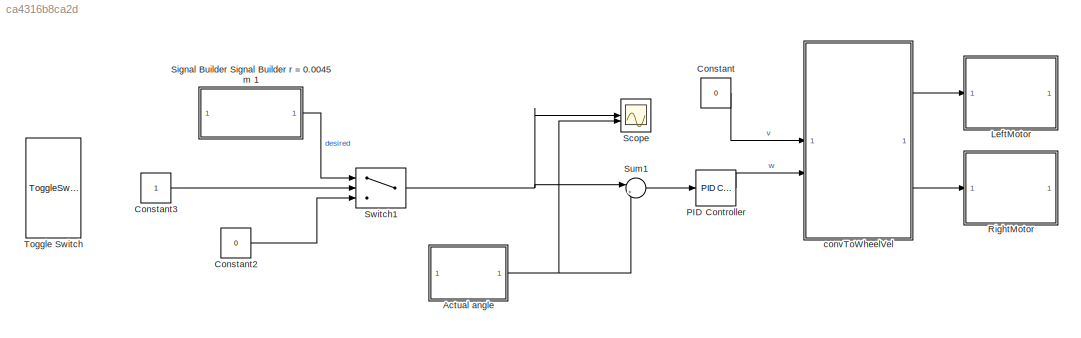
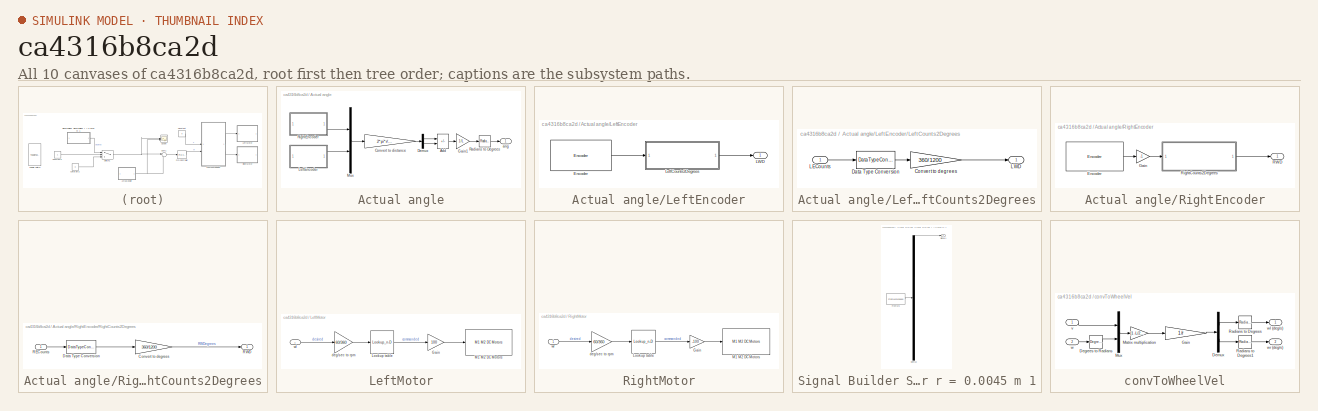
[diagram: thumbnail index - all 10 canvases of the model, root first then tree order]
MODEL slx_ca4316b8ca2d
KIND model
CONFIG AbsTol = auto
CONFIG EnableMultiTasking = on
CONFIG FixedStep = TS
CONFIG MaxStep = auto
CONFIG MinStep = auto
CONFIG PostLoadFcn = paramsBasicKinematics\nload('MotorResponse.mat')
CONFIG RelTol = 1e-3
CONFIG SampleTimeConstraint = Unconstrained
CONFIG SolverName = FixedStepAuto
CONFIG StartTime = 0.0
CONFIG StopTime = inf
WORKSPACE source: mxarray member
WORKSPACE TS = 0.01
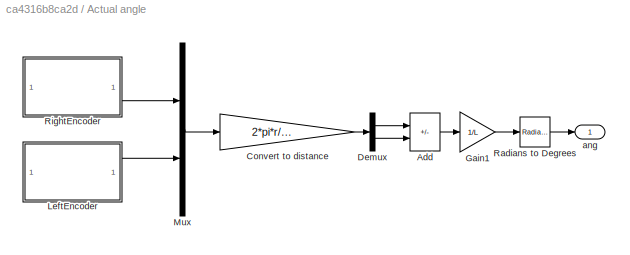
BLOCK [SubSystem] Actual angle
BLOCK [Sum] Actual angle/Add
  IconShape = rectangular
  Inputs = +-
BLOCK [Gain] Actual angle/Convert to distance
  Gain = 2*pi*r/360
BLOCK [Demux] Actual angle/Demux
  Outputs = 2
BLOCK [Gain] Actual angle/Gain1
  Gain = 1/L
BLOCK [SubSystem] Actual angle/LeftEncoder
BLOCK [Reference] Actual angle/LeftEncoder/Encoder  REF=arduinomotorcarrierlib/Encoder
  SourceBlock = arduinomotorcarrierlib/Encoder
  SourceType = motorcarrier.blocks.mkrmotorcarrier_Encoder
BLOCK [Outport] Actual angle/LeftEncoder/LWD
  VectorParamsAs1DForOutWhenUnconnected = off
BLOCK [SubSystem] Actual angle/LeftEncoder/LeftCounts2Degrees
BLOCK [Gain] Actual angle/LeftEncoder/LeftCounts2Degrees/Convert to degrees
  Gain = 360/1200
BLOCK [DataTypeConversion] Actual angle/LeftEncoder/LeftCounts2Degrees/Data Type Conversion
  OutDataTypeStr = double
  RndMeth = Floor
  SaturateOnIntegerOverflow = off
BLOCK [Inport] Actual angle/LeftEncoder/LeftCounts2Degrees/LECounts
BLOCK [Outport] Actual angle/LeftEncoder/LeftCounts2Degrees/LWD
  VectorParamsAs1DForOutWhenUnconnected = off
BLOCK [Mux] Actual angle/Mux
  DisplayOption = bar
  Inputs = 2
BLOCK [Reference] Actual angle/Radians to Degrees  REF=simulink_extras/Transformations/Radians
to Degrees
  SourceBlock = simulink_extras/Transformations/Radians\nto Degrees
  SourceType = RadiansToDegrees
BLOCK [SubSystem] Actual angle/RightEncoder
BLOCK [Reference] Actual angle/RightEncoder/Encoder  REF=arduinomotorcarrierlib/Encoder
  SourceBlock = arduinomotorcarrierlib/Encoder
  SourceType = motorcarrier.blocks.mkrmotorcarrier_Encoder
BLOCK [Gain] Actual angle/RightEncoder/Gain
  Gain = -1
BLOCK [Outport] Actual angle/RightEncoder/RWD
  VectorParamsAs1DForOutWhenUnconnected = off
BLOCK [SubSystem] Actual angle/RightEncoder/RightCounts2Degrees
BLOCK [Gain] Actual angle/RightEncoder/RightCounts2Degrees/Convert to degrees
  Gain = 360/1200
BLOCK [DataTypeConversion] Actual angle/RightEncoder/RightCounts2Degrees/Data Type Conversion
  OutDataTypeStr = double
  RndMeth = Floor
  SaturateOnIntegerOverflow = off
BLOCK [Inport] Actual angle/RightEncoder/RightCounts2Degrees/RECounts
BLOCK [Outport] Actual angle/RightEncoder/RightCounts2Degrees/RWD
  VectorParamsAs1DForOutWhenUnconnected = off
BLOCK [Outport] Actual angle/ang
  VectorParamsAs1DForOutWhenUnconnected = off
BLOCK [Constant] Constant
  Value = 0
BLOCK [Constant] Constant2
  Value = 0
BLOCK [Constant] Constant3
BLOCK [SubSystem] LeftMotor
BLOCK [Gain] LeftMotor/Gain
  Gain = 100
BLOCK [Lookup_n-D] LeftMotor/Lookup table
  BreakpointsForDimension1 = speedMono
  InputPortMap = u0
  InternalRulePriority = Speed
  NumberOfTableDimensions = 1
  RndMeth = Simplest
  Table = PWMcmdMono
  UseLastTableValue = on
BLOCK [Reference] LeftMotor/M1 M2 DC Motors  REF=arduinomotorcarrierlib/M1 M2 DC Motors
  SourceBlock = arduinomotorcarrierlib/M1 M2 DC Motors
  SourceType = DC Motor
BLOCK [Gain] LeftMotor/deg//sec to rpm
  Gain = 60/360
BLOCK [Inport] LeftMotor/wl
BLOCK [Reference] PID Controller   REF=slpidlib/PID Controller
  SourceBlock = slpidlib/PID Controller
  SourceType = PID 1dof
BLOCK [SubSystem] RightMotor
BLOCK [Gain] RightMotor/Gain
  Gain = -100
BLOCK [Lookup_n-D] RightMotor/Lookup table
  BreakpointsForDimension1 = speedMono
  InputPortMap = u0
  InternalRulePriority = Speed
  NumberOfTableDimensions = 1
  RndMeth = Simplest
  Table = PWMcmdMono
  UseLastTableValue = on
BLOCK [Reference] RightMotor/M1 M2 DC Motors  REF=arduinomotorcarrierlib/M1 M2 DC Motors
  SourceBlock = arduinomotorcarrierlib/M1 M2 DC Motors
  SourceType = DC Motor
BLOCK [Gain] RightMotor/deg//sec to rpm
  Gain = 60/360
BLOCK [Inport] RightMotor/wr
BLOCK [Scope] Scope
  Floating = off
  NumInputPorts = 2
  ScopeSpecificationString = Simulink.scopes.TimeScopeBlockCfg('CurrentConfiguration', extmgr.ConfigurationSet(extmgr.Configuration('Core','General UI',true),extmgr.Configuration('Core','Source UI',true),extmgr.Configuration('Sources','WiredSimulink',true),extmgr.Configuration('Visuals','Time Domain',true,'SerializedDisplays',{struct('MinYLimReal','85.05662','MaxYLimReal','90.54926','YLabelReal','','MinYLimMag','85.05662','Ma...<+1513ch>
BLOCK [SubSystem] Signal Builder Signal Builder r = 0.0045 m 1
  ClipboardFcn = sigbuilder_block('clipboard');
  CloseFcn = sigbuilder_block('close');
  ContinueFcn = sigbuilder_block('continue');
  CopyFcn = sigbuilder_block('copy');
  DeleteFcn = sigbuilder_block('delete');
  LoadFcn = sigbuilder_block('load');
  MaskHideContents = on
  ModelCloseFcn = sigbuilder_block('modelClose');
  NameChangeFcn = sigbuilder_block('namechange');
  OpenFcn = sigbuilder_block('open',[256.5 124.5 550.5 399.75 ]);
  PauseFcn = sigbuilder_block('pause');
  PreSaveFcn = sigbuilder_block('preSave');
  StartFcn = sigbuilder_block('start');
  StopFcn = sigbuilder_block('stop');
  Tag = STV Subsys
BLOCK [Demux] Signal Builder Signal Builder r = 0.0045 m 1/Demux
  DisplayOption = none
  Outputs = 1
  Tag = STV Demux
BLOCK [FromWorkspace] Signal Builder Signal Builder r = 0.0045 m 1/FromWs
  Tag = STV FromWs
  VariableName = tuvar
BLOCK [Outport] Signal Builder Signal Builder r = 0.0045 m 1/Signal 1
  Tag = STV Outport
  VectorParamsAs1DForOutWhenUnconnected = off
BLOCK [Sum] Sum1
  Inputs = |+-
  NameLocation = top
BLOCK [Switch] Switch1
  Criteria = u2 > Threshold
  InputSameDT = off
  SaturateOnIntegerOverflow = off
BLOCK [ToggleSwitchBlock] Toggle Switch
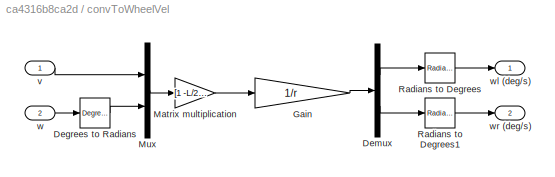
BLOCK [SubSystem] convToWheelVel
BLOCK [Gain] convToWheelVel/ Gain
  Gain = 1/r
  Multiplication = Matrix(K*u)
BLOCK [Reference] convToWheelVel/Degrees to Radians  REF=simulink_extras/Transformations/Degrees to
Radians
  SourceBlock = simulink_extras/Transformations/Degrees to\nRadians
  SourceType = DegreesToRadians
BLOCK [Demux] convToWheelVel/Demux
  Outputs = 2
BLOCK [Gain] convToWheelVel/Matrix multiplication
  Gain = [1 -L/2; 1 L/2]
  Multiplication = Matrix(K*u)
BLOCK [Mux] convToWheelVel/Mux
  DisplayOption = bar
  Inputs = 2
BLOCK [Reference] convToWheelVel/Radians to Degrees  REF=simulink_extras/Transformations/Radians
to Degrees
  SourceBlock = simulink_extras/Transformations/Radians\nto Degrees
  SourceType = RadiansToDegrees
BLOCK [Reference] convToWheelVel/Radians to Degrees1  REF=simulink_extras/Transformations/Radians
to Degrees
  SourceBlock = simulink_extras/Transformations/Radians\nto Degrees
  SourceType = RadiansToDegrees
BLOCK [Inport] convToWheelVel/v
BLOCK [Inport] convToWheelVel/w
  Port = 2
BLOCK [Outport] convToWheelVel/wl (deg//s)
  VectorParamsAs1DForOutWhenUnconnected = off
BLOCK [Outport] convToWheelVel/wr (deg//s)
  Port = 2
  VectorParamsAs1DForOutWhenUnconnected = off
LINE Actual angle/Add:1 -> Actual angle/Gain1:1
LINE Actual angle/Convert to distance:1 -> Actual angle/Demux:1
LINE Actual angle/Demux:1 -> Actual angle/Add:1
LINE Actual angle/Demux:2 -> Actual angle/Add:2
LINE Actual angle/Gain1:1 -> Actual angle/Radians to Degrees:1
LINE Actual angle/LeftEncoder/Encoder:1 -> Actual angle/LeftEncoder/LeftCounts2Degrees:1
LINE Actual angle/LeftEncoder/LeftCounts2Degrees/Convert to degrees:1 -> Actual angle/LeftEncoder/LeftCounts2Degrees/LWD:1
LINE Actual angle/LeftEncoder/LeftCounts2Degrees/Data Type Conversion:1 -> Actual angle/LeftEncoder/LeftCounts2Degrees/Convert to degrees:1
LINE Actual angle/LeftEncoder/LeftCounts2Degrees/LECounts:1 -> Actual angle/LeftEncoder/LeftCounts2Degrees/Data Type Conversion:1
LINE Actual angle/LeftEncoder/LeftCounts2Degrees:1 -> Actual angle/LeftEncoder/LWD:1
LINE Actual angle/LeftEncoder:1 -> Actual angle/Mux:2
LINE Actual angle/Mux:1 -> Actual angle/Convert to distance:1
LINE Actual angle/Radians to Degrees:1 -> Actual angle/ang:1
LINE Actual angle/RightEncoder/Encoder:1 -> Actual angle/RightEncoder/Gain:1
LINE Actual angle/RightEncoder/Gain:1 -> Actual angle/RightEncoder/RightCounts2Degrees:1
LINE Actual angle/RightEncoder/RightCounts2Degrees/Convert to degrees:1 -> Actual angle/RightEncoder/RightCounts2Degrees/RWD:1
LINE Actual angle/RightEncoder/RightCounts2Degrees/Data Type Conversion:1 -> Actual angle/RightEncoder/RightCounts2Degrees/Convert to degrees:1
LINE Actual angle/RightEncoder/RightCounts2Degrees/RECounts:1 -> Actual angle/RightEncoder/RightCounts2Degrees/Data Type Conversion:1
LINE Actual angle/RightEncoder/RightCounts2Degrees:1 -> Actual angle/RightEncoder/RWD:1
LINE Actual angle/RightEncoder:1 -> Actual angle/Mux:1
NET Actual angle:1 -> Scope:2, Sum1:2
LINE Constant2:1 -> Switch1:3
LINE Constant3:1 -> Switch1:2
LINE Constant:1 -> convToWheelVel:1
LINE LeftMotor/Gain:1 -> LeftMotor/M1 M2 DC Motors:1
LINE LeftMotor/Lookup table:1 -> LeftMotor/Gain:1
LINE LeftMotor/deg//sec to rpm:1 -> LeftMotor/Lookup table:1
LINE LeftMotor/wl:1 -> LeftMotor/deg//sec to rpm:1
LINE PID Controller :1 -> convToWheelVel:2
LINE RightMotor/Gain:1 -> RightMotor/M1 M2 DC Motors:1
LINE RightMotor/Lookup table:1 -> RightMotor/Gain:1
LINE RightMotor/deg//sec to rpm:1 -> RightMotor/Lookup table:1
LINE RightMotor/wr:1 -> RightMotor/deg//sec to rpm:1
LINE Signal Builder Signal Builder r = 0.0045 m 1:1 -> Switch1:1
LINE Sum1:1 -> PID Controller :1
NET Switch1:1 -> Scope:1, Sum1:1
LINE convToWheelVel/ Gain:1 -> convToWheelVel/Demux:1
LINE convToWheelVel/Degrees to Radians:1 -> convToWheelVel/Mux:2
LINE convToWheelVel/Demux:1 -> convToWheelVel/Radians to Degrees:1
LINE convToWheelVel/Demux:2 -> convToWheelVel/Radians to Degrees1:1
LINE convToWheelVel/Matrix multiplication:1 -> convToWheelVel/ Gain:1
LINE convToWheelVel/Mux:1 -> convToWheelVel/Matrix multiplication:1
LINE convToWheelVel/Radians to Degrees1:1 -> convToWheelVel/wr (deg//s):1
LINE convToWheelVel/Radians to Degrees:1 -> convToWheelVel/wl (deg//s):1
LINE convToWheelVel/v:1 -> convToWheelVel/Mux:1
LINE convToWheelVel/w:1 -> convToWheelVel/Degrees to Radians:1
LINE convToWheelVel:1 -> LeftMotor:1
LINE convToWheelVel:2 -> RightMotor:1
note: NET lines group one-source signal fan-out (src -> all destinations, sorted); 1:1 wires keep LINE
